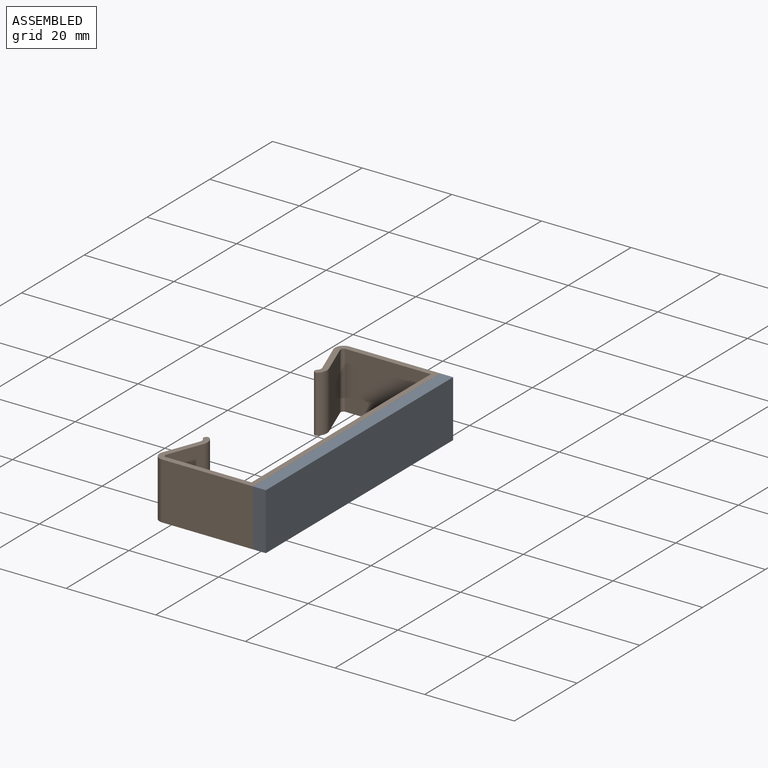
[diagram: assembled view]
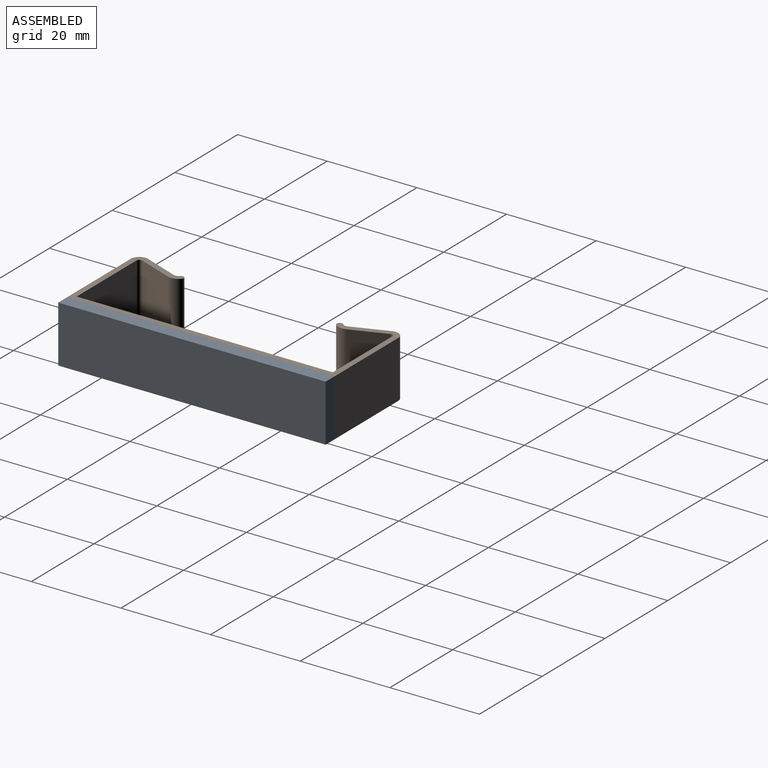
[diagram: assembled view, second angle]
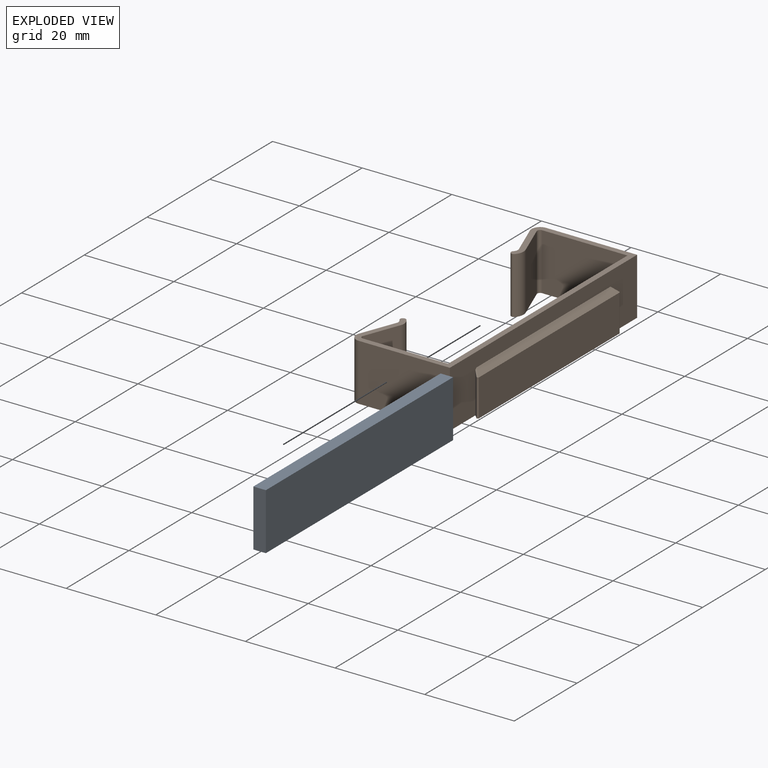
[diagram: exploded view]
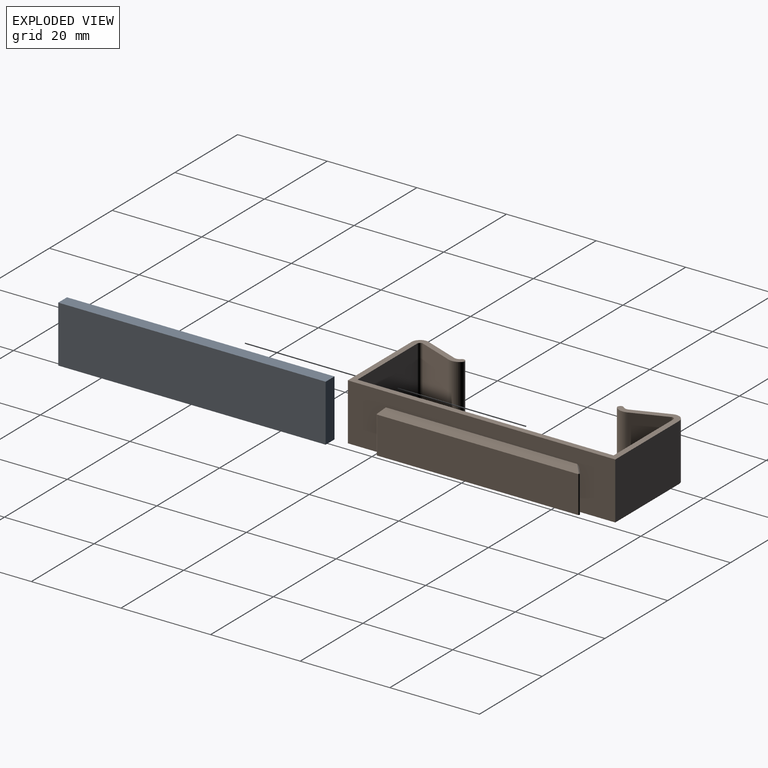
[diagram: exploded view, second angle]
ASSEMBLY  parts=2 mates=2
PART A: 12 faces, bbox 2.8x59.7x12.7 mm
  f0: plane 59.69x12.7mm, normal (-1,0,0), area 332.4mm2, adj f1,f2,f3,f4,f7,f8,f9,f10
  f1: plane 59.69x2.79mm, normal (0,0,1), area 94.4mm2, adj f0,f3,f5,f6,f9,f10,f11
  f2: plane 9.53x1.52mm, normal (0.71,0.71,0), area 18.9mm2, adj f0,f5,f8,f10
  f3: plane 12.7x2.79mm, normal (0,1,0), area 35.5mm2, adj f0,f1,f6,f7
  f4: plane 9.53x1.52mm, normal (0.71,-0.71,0), area 18.9mm2, adj f0,f5,f8,f11
  f5: plane 47.5x9.53mm, normal (-1,0,0), area 452.4mm2, adj f1,f2,f4,f8
  f6: plane 59.69x12.7mm, normal (1,0,0), area 758.1mm2, adj f1,f3,f7,f9
  f7: plane 59.69x2.79mm, normal (0,0,-1), area 166.8mm2, adj f0,f3,f6,f9
  f8: plane 47.5x1.52mm, normal (0,0,1), area 70.1mm2, adj f0,f2,f4,f5
  f9: plane 12.7x2.79mm, normal (0,-1,0), area 35.5mm2, adj f0,f1,f6,f7
  f10: plane 1.52x1.52mm, normal (0,0.71,0.71), area 1.6mm2, adj f0,f1,f2
  f11: plane 1.52x1.52mm, normal (0,-0.71,0.71), area 1.6mm2, adj f0,f1,f4
PART B: 30 faces, bbox 23.5x59.7x12.7 mm
  f0: cylinder r=0.25mm len=8.33mm, axis (0,0,-1), area 5mm2, adj f2,f4,f5,f18,f29
  f1: cylinder r=0.25mm len=8.33mm, axis (0,0,-1), area 5mm2, adj f3,f4,f18,f28,f29
  f2: plane 1.27x1.27mm, normal (0,0.71,0.71), area 0.5mm2, adj f0,f5,f6,f29
  f3: plane 1.27x1.27mm, normal (0,-0.71,0.71), area 0.5mm2, adj f1,f6,f28,f29
  f4: plane 44.75x8.26mm, normal (1,0,0), area 369.4mm2, adj f0,f1,f18,f29
  f5: plane 9.17x0.84mm, normal (-0.71,0.71,0), area 10.3mm2, adj f0,f2,f6,f18
  f6: plane 59.69x12.7mm, normal (1,0,0), area 344.5mm2, adj f2,f3,f5,f15,f17,f18,f26,f28
  f7: plane 12.7x7.76mm, normal (-0.93,-0.36,0), area 105.5mm2, adj f8,f16,f17,f18
  f8: cylinder r=1.27mm len=12.7mm, axis (0,0,-1), area 18.6mm2, adj f7,f9,f17,f18
  f9: cylinder r=0.64mm len=12.7mm, axis (0,0,-1), area 25.3mm2, adj f8,f10,f17,f18
  f10: cylinder r=2.54mm len=12.7mm, axis (0,0,-1), area 37.1mm2, adj f9,f11,f17,f18
  f11: plane 12.7x7.76mm, normal (0.93,0.36,0), area 105.5mm2, adj f10,f12,f17,f18
  f12: cylinder r=0.64mm len=12.7mm, axis (0,0,-1), area 15.6mm2, adj f11,f13,f17,f18
  f13: plane 19.05x12.7mm, normal (0,-1,0), area 241.9mm2, adj f12,f14,f17,f18
  f14: plane 57.15x12.7mm, normal (-1,0,0), area 725.8mm2, adj f13,f17,f18,f25
  f15: plane 20.32x12.7mm, normal (0,1,0), area 258.1mm2, adj f6,f16,f17,f18
  f16: cylinder r=1.91mm len=12.7mm, axis (0,0,-1), area 46.8mm2, adj f7,f15,f17,f18
  f17: plane 59.69x22.23mm, normal (0,0,1), area 158.4mm2, adj f6,f7,f8,f9,f10,f11,f12,f13
  f18: plane 59.69x23.5mm, normal (0,0,-1), area 215mm2, adj f0,f1,f4,f5,f6,f7,f8,f9
  f19: plane 12.7x7.76mm, normal (-0.93,0.36,0), area 105.5mm2, adj f17,f18,f20,f27
  f20: cylinder r=1.27mm len=12.7mm, axis (0,0,-1), area 18.6mm2, adj f17,f18,f19,f21
  f21: cylinder r=0.64mm len=12.7mm, axis (0,0,-1), area 25.3mm2, adj f17,f18,f20,f22
  f22: cylinder r=2.54mm len=12.7mm, axis (0,0,-1), area 37.1mm2, adj f17,f18,f21,f23
  f23: plane 12.7x7.76mm, normal (0.93,-0.36,0), area 105.5mm2, adj f17,f18,f22,f24
  f24: cylinder r=0.64mm len=12.7mm, axis (0,0,-1), area 15.6mm2, adj f17,f18,f23,f25
  f25: plane 19.05x12.7mm, normal (0,1,0), area 241.9mm2, adj f14,f17,f18,f24
  f26: plane 20.32x12.7mm, normal (0,-1,0), area 258.1mm2, adj f6,f17,f18,f27
  f27: cylinder r=1.91mm len=12.7mm, axis (0,0,-1), area 46.8mm2, adj f17,f18,f19,f26
  f28: plane 9.17x0.84mm, normal (-0.71,-0.71,0), area 10.3mm2, adj f1,f3,f6,f18
  f29: plane 45.11x1.27mm, normal (0.71,0,0.71), area 79mm2, adj f0,f1,f2,f3,f4,f6
PLACE A rot(axis=(1,0,0),180deg) t=(-0.41,1.5,0.21)mm
PLACE B t=(-10.58,16.43,-2.97)mm fixed
MATE planar B.f26 <-> A.f3  axis (0,-1,0) through (-0.42,-28.34,-2.97)mm
MATE planar B.f17 <-> A.f7  axis (0,0,1) through (-1.69,1.5,3.38)mm
